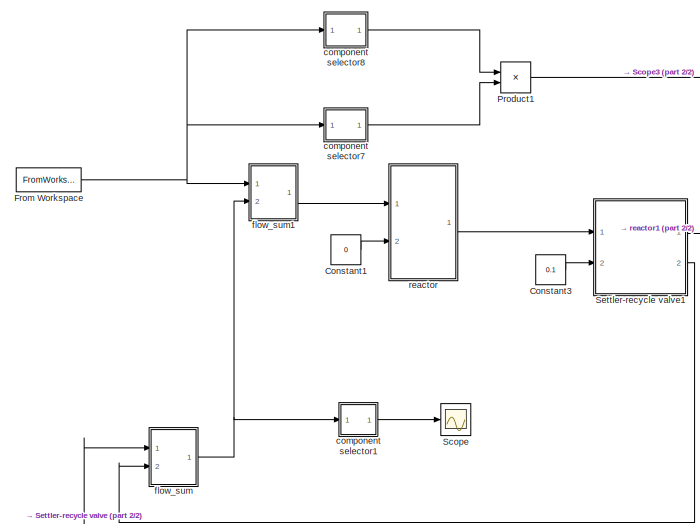
[diagram: root canvas - part 1/2, left side, full height]
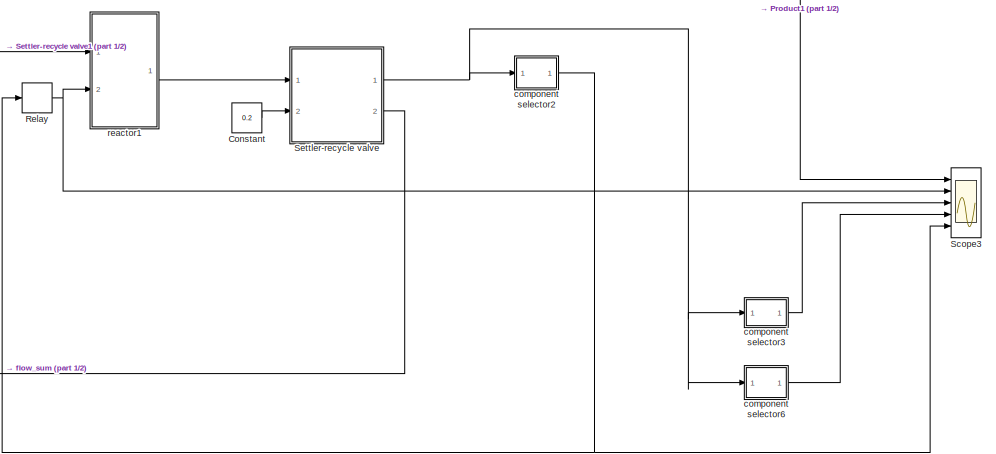
[diagram: root canvas - part 2/2, middle right region]
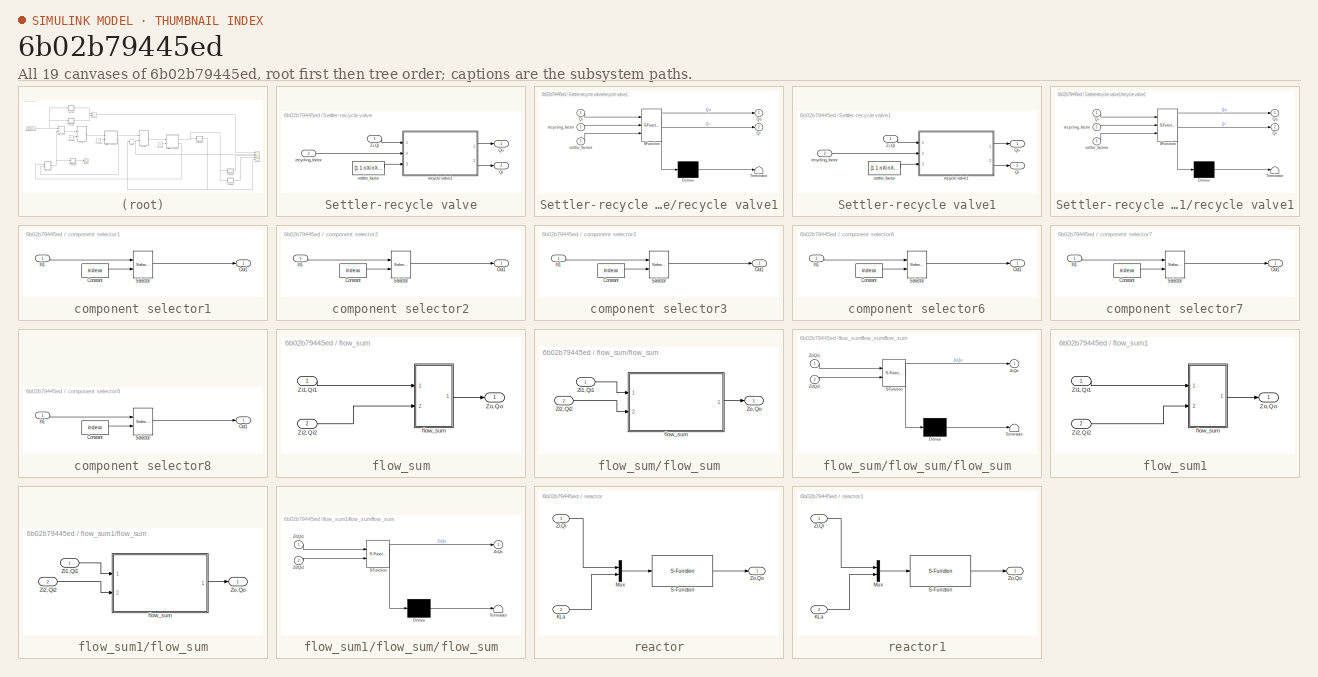
[diagram: thumbnail index - all 19 canvases of the model, root first then tree order]
MODEL slx_6b02b79445ed
KIND model
CONFIG AbsTol = Auto
CONFIG MaxStep = auto
CONFIG MinStep = auto
CONFIG RelTol = 1e-3
CONFIG SampleTimeConstraint = Unconstrained
CONFIG Solver = VariableStepAuto
CONFIG SolverMode = Auto
CONFIG SolverName = VariableStepAuto
CONFIG StartTime = 0.0
CONFIG StopTime = 28
BLOCK [Constant] Constant
  Value = 0.2
BLOCK [Constant] Constant1
  Value = 0
BLOCK [Constant] Constant3
  Value = 0.1
BLOCK [FromWorkspace] From Workspace
  OutputAfterFinalValue = Holding final value
  SampleTime = 2/1440
  VariableName = Qi
BLOCK [Product] Product1
  InputSameDT = off
  OutDataTypeStr = Inherit: Inherit via internal rule
  Ports = [2, 1]
  SaturateOnIntegerOverflow = off
BLOCK [Relay] Relay
  OffSwitchValue = 3
  OnOutputValue = 40
  OnSwitchValue = 5.4
BLOCK [Scope] Scope
  Ports = [1]
  ScopeSpecificationString = Simulink.scopes.TimeScopeBlockCfg('CurrentConfiguration', extmgr.ConfigurationSet(extmgr.Configuration('Core','General UI',true),extmgr.Configuration('Core','Source UI',true),extmgr.Configuration('Sources','WiredSimulink',true,'DataLoggingVariableName','ScopeData2'),extmgr.Configuration('Visuals','Time Domain',true,'SerializedDisplays',{struct('MinYLimReal','423.67792','MaxYLimReal','2038.62653','...<+1471ch>
BLOCK [Scope] Scope3
  NumInputPorts = 5
  Ports = [5]
  ScopeSpecificationString = Simulink.scopes.TimeScopeBlockCfg('CurrentConfiguration', extmgr.ConfigurationSet(extmgr.Configuration('Core','General UI',true),extmgr.Configuration('Core','Source UI',true),extmgr.Configuration('Sources','WiredSimulink',true,'DataLoggingSaveFormat','StructureWithTime','DataLoggingDecimation','1','DataLoggingDecimateData',true),extmgr.Configuration('Visuals','Time Domain',true,'TimeAxisLabels','A...<+4371ch>
BLOCK [SubSystem] Settler-recycle valve
  Ports = [2, 2]
  RequestExecContextInheritance = off
  Variant = off
BLOCK [Outport] Settler-recycle valve/Qo
  IconDisplay = Port number
BLOCK [Outport] Settler-recycle valve/Qr
  IconDisplay = Port number
  Port = 2
BLOCK [Inport] Settler-recycle valve/Zi,Qi
  IconDisplay = Port number
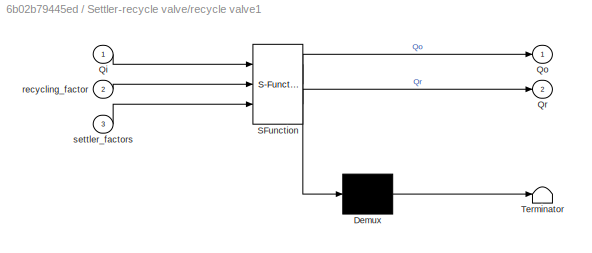
BLOCK [SubSystem] Settler-recycle valve/recycle valve1
  ErrorFcn = Stateflow.Translate.translate
  PermitHierarchicalResolution = ExplicitOnly
  Ports = [3, 2]
  RequestExecContextInheritance = off
  SFBlockType = MATLAB Function
  TreatAsAtomicUnit = on
  Variant = off
BLOCK [Demux] Settler-recycle valve/recycle valve1/ Demux 
  Outputs = 1
  Ports = [1, 1]
BLOCK [S-Function] Settler-recycle valve/recycle valve1/ SFunction 
  EnableBusSupport = on
  FunctionName = sf_sfun
  PortCounts = [3 3]
  Ports = [3, 3]
  SFunctionDeploymentMode = off
  Tag = Stateflow S-Function modelo_asm1_v2 1
BLOCK [Terminator] Settler-recycle valve/recycle valve1/ Terminator 
BLOCK [Inport] Settler-recycle valve/recycle valve1/Qi
  IconDisplay = Port number
BLOCK [Outport] Settler-recycle valve/recycle valve1/Qo
  IconDisplay = Port number
BLOCK [Outport] Settler-recycle valve/recycle valve1/Qr
  IconDisplay = Port number
  Port = 2
BLOCK [Inport] Settler-recycle valve/recycle valve1/recycling_factor
  IconDisplay = Port number
  Port = 2
BLOCK [Inport] Settler-recycle valve/recycle valve1/settler_factors
  IconDisplay = Port number
  Port = 3
BLOCK [Inport] Settler-recycle valve/recycling_factor
  IconDisplay = Port number
  Port = 2
BLOCK [Constant] Settler-recycle valve/settler_factor
  Value = [1 1 nXi nXs nXbh nXba nXp 1 1 1 1 1 1]
BLOCK [SubSystem] Settler-recycle valve1
  Ports = [2, 2]
  RequestExecContextInheritance = off
  Variant = off
BLOCK [Outport] Settler-recycle valve1/Qo
  IconDisplay = Port number
BLOCK [Outport] Settler-recycle valve1/Qr
  IconDisplay = Port number
  Port = 2
BLOCK [Inport] Settler-recycle valve1/Zi,Qi
  IconDisplay = Port number
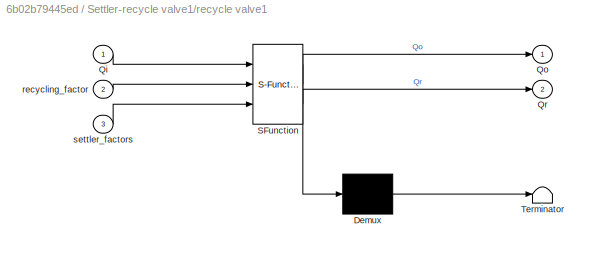
BLOCK [SubSystem] Settler-recycle valve1/recycle valve1
  ErrorFcn = Stateflow.Translate.translate
  PermitHierarchicalResolution = ExplicitOnly
  Ports = [3, 2]
  RequestExecContextInheritance = off
  SFBlockType = MATLAB Function
  TreatAsAtomicUnit = on
  Variant = off
BLOCK [Demux] Settler-recycle valve1/recycle valve1/ Demux 
  Outputs = 1
  Ports = [1, 1]
BLOCK [S-Function] Settler-recycle valve1/recycle valve1/ SFunction 
  EnableBusSupport = on
  FunctionName = sf_sfun
  PortCounts = [3 3]
  Ports = [3, 3]
  SFunctionDeploymentMode = off
  Tag = Stateflow S-Function modelo_asm1_v2 3
BLOCK [Terminator] Settler-recycle valve1/recycle valve1/ Terminator 
BLOCK [Inport] Settler-recycle valve1/recycle valve1/Qi
  IconDisplay = Port number
BLOCK [Outport] Settler-recycle valve1/recycle valve1/Qo
  IconDisplay = Port number
BLOCK [Outport] Settler-recycle valve1/recycle valve1/Qr
  IconDisplay = Port number
  Port = 2
BLOCK [Inport] Settler-recycle valve1/recycle valve1/recycling_factor
  IconDisplay = Port number
  Port = 2
BLOCK [Inport] Settler-recycle valve1/recycle valve1/settler_factors
  IconDisplay = Port number
  Port = 3
BLOCK [Inport] Settler-recycle valve1/recycling_factor
  IconDisplay = Port number
  Port = 2
BLOCK [Constant] Settler-recycle valve1/settler_factor
  Value = [1 1 nXi nXs nXbh nXba nXp 1 1 1 1 1 1]
BLOCK [SubSystem] component selector1
  Ports = [1, 1]
  RequestExecContextInheritance = off
  Variant = off
BLOCK [Constant] component selector1/Constant
  Value = indexx
BLOCK [Inport] component selector1/In1
  IconDisplay = Port number
BLOCK [Outport] component selector1/Out1
  IconDisplay = Port number
BLOCK [Selector] component selector1/Selector
  IndexOptions = Index vector (port)
  Indices = [1 3]
  InputPortWidth = 14
  OutputSizes = 1
  Ports = [2, 1]
BLOCK [SubSystem] component selector2
  Ports = [1, 1]
  RequestExecContextInheritance = off
  Variant = off
BLOCK [Constant] component selector2/Constant
  Value = indexx
BLOCK [Inport] component selector2/In1
  IconDisplay = Port number
BLOCK [Outport] component selector2/Out1
  IconDisplay = Port number
BLOCK [Selector] component selector2/Selector
  IndexOptions = Index vector (port)
  Indices = [1 3]
  InputPortWidth = 14
  OutputSizes = 1
  Ports = [2, 1]
BLOCK [SubSystem] component selector3
  Ports = [1, 1]
  RequestExecContextInheritance = off
  Variant = off
BLOCK [Constant] component selector3/Constant
  Value = indexx
BLOCK [Inport] component selector3/In1
  IconDisplay = Port number
BLOCK [Outport] component selector3/Out1
  IconDisplay = Port number
BLOCK [Selector] component selector3/Selector
  IndexOptions = Index vector (port)
  Indices = [1 3]
  InputPortWidth = 14
  OutputSizes = 1
  Ports = [2, 1]
BLOCK [SubSystem] component selector6
  Ports = [1, 1]
  RequestExecContextInheritance = off
  Variant = off
BLOCK [Constant] component selector6/Constant
  Value = indexx
BLOCK [Inport] component selector6/In1
  IconDisplay = Port number
BLOCK [Outport] component selector6/Out1
  IconDisplay = Port number
BLOCK [Selector] component selector6/Selector
  IndexOptions = Index vector (port)
  Indices = [1 3]
  InputPortWidth = 14
  OutputSizes = 1
  Ports = [2, 1]
BLOCK [SubSystem] component selector7
  Ports = [1, 1]
  RequestExecContextInheritance = off
  Variant = off
BLOCK [Constant] component selector7/Constant
  Value = indexx
BLOCK [Inport] component selector7/In1
  IconDisplay = Port number
BLOCK [Outport] component selector7/Out1
  IconDisplay = Port number
BLOCK [Selector] component selector7/Selector
  IndexOptions = Index vector (port)
  Indices = [1 3]
  InputPortWidth = 14
  OutputSizes = 1
  Ports = [2, 1]
BLOCK [SubSystem] component selector8
  Ports = [1, 1]
  RequestExecContextInheritance = off
  Variant = off
BLOCK [Constant] component selector8/Constant
  Value = indexx
BLOCK [Inport] component selector8/In1
  IconDisplay = Port number
BLOCK [Outport] component selector8/Out1
  IconDisplay = Port number
BLOCK [Selector] component selector8/Selector
  IndexOptions = Index vector (port)
  Indices = [1 3]
  InputPortWidth = 14
  OutputSizes = 1
  Ports = [2, 1]
BLOCK [SubSystem] flow_sum
  Ports = [2, 1]
  RequestExecContextInheritance = off
  Variant = off
BLOCK [Inport] flow_sum/Zi1,Qi1
  IconDisplay = Port number
BLOCK [Inport] flow_sum/Zi2,Qi2
  IconDisplay = Port number
  Port = 2
BLOCK [Outport] flow_sum/Zo,Qo
  IconDisplay = Port number
BLOCK [SubSystem] flow_sum/flow_sum
  Ports = [2, 1]
  RequestExecContextInheritance = off
  Variant = off
BLOCK [Inport] flow_sum/flow_sum/Zi1,Qi1
  IconDisplay = Port number
BLOCK [Inport] flow_sum/flow_sum/Zi2,Qi2
  IconDisplay = Port number
  Port = 2
BLOCK [Outport] flow_sum/flow_sum/Zo,Qo
  IconDisplay = Port number
BLOCK [SubSystem] flow_sum/flow_sum/flow_sum
  ErrorFcn = Stateflow.Translate.translate
  PermitHierarchicalResolution = ExplicitOnly
  Ports = [2, 1]
  RequestExecContextInheritance = off
  SFBlockType = MATLAB Function
  TreatAsAtomicUnit = on
  Variant = off
BLOCK [Demux] flow_sum/flow_sum/flow_sum/ Demux 
  Outputs = 1
  Ports = [1, 1]
BLOCK [S-Function] flow_sum/flow_sum/flow_sum/ SFunction 
  EnableBusSupport = on
  FunctionName = sf_sfun
  PortCounts = [2 2]
  Ports = [2, 2]
  SFunctionDeploymentMode = off
  Tag = Stateflow S-Function modelo_asm1_v2 2
BLOCK [Terminator] flow_sum/flow_sum/flow_sum/ Terminator 
BLOCK [Inport] flow_sum/flow_sum/flow_sum/Zi1Qi1
  IconDisplay = Port number
BLOCK [Inport] flow_sum/flow_sum/flow_sum/Zi2Qi2
  IconDisplay = Port number
  Port = 2
BLOCK [Outport] flow_sum/flow_sum/flow_sum/ZoQo
  IconDisplay = Port number
BLOCK [SubSystem] flow_sum1
  Ports = [2, 1]
  RequestExecContextInheritance = off
  Variant = off
BLOCK [Inport] flow_sum1/Zi1,Qi1
  IconDisplay = Port number
BLOCK [Inport] flow_sum1/Zi2,Qi2
  IconDisplay = Port number
  Port = 2
BLOCK [Outport] flow_sum1/Zo,Qo
  IconDisplay = Port number
BLOCK [SubSystem] flow_sum1/flow_sum
  Ports = [2, 1]
  RequestExecContextInheritance = off
  Variant = off
BLOCK [Inport] flow_sum1/flow_sum/Zi1,Qi1
  IconDisplay = Port number
BLOCK [Inport] flow_sum1/flow_sum/Zi2,Qi2
  IconDisplay = Port number
  Port = 2
BLOCK [Outport] flow_sum1/flow_sum/Zo,Qo
  IconDisplay = Port number
BLOCK [SubSystem] flow_sum1/flow_sum/flow_sum
  ErrorFcn = Stateflow.Translate.translate
  PermitHierarchicalResolution = ExplicitOnly
  Ports = [2, 1]
  RequestExecContextInheritance = off
  SFBlockType = MATLAB Function
  TreatAsAtomicUnit = on
  Variant = off
BLOCK [Demux] flow_sum1/flow_sum/flow_sum/ Demux 
  Outputs = 1
  Ports = [1, 1]
BLOCK [S-Function] flow_sum1/flow_sum/flow_sum/ SFunction 
  EnableBusSupport = on
  FunctionName = sf_sfun
  PortCounts = [2 2]
  Ports = [2, 2]
  SFunctionDeploymentMode = off
  Tag = Stateflow S-Function modelo_asm1_v2 4
BLOCK [Terminator] flow_sum1/flow_sum/flow_sum/ Terminator 
BLOCK [Inport] flow_sum1/flow_sum/flow_sum/Zi1Qi1
  IconDisplay = Port number
BLOCK [Inport] flow_sum1/flow_sum/flow_sum/Zi2Qi2
  IconDisplay = Port number
  Port = 2
BLOCK [Outport] flow_sum1/flow_sum/flow_sum/ZoQo
  IconDisplay = Port number
BLOCK [SubSystem] reactor
  Ports = [2, 1]
  RequestExecContextInheritance = off
  Variant = off
BLOCK [Inport] reactor/KLa
  IconDisplay = Port number
  Port = 2
BLOCK [Mux] reactor/Mux
  DisplayOption = bar
  Inputs = 2
  Ports = [2, 1]
BLOCK [S-Function] reactor/S-Function
  EnableBusSupport = off
  FunctionName = modelo_asm1_sf
  Parameters = initial_cond, parameters
  Ports = [1, 1]
  SFunctionDeploymentMode = off
BLOCK [Inport] reactor/Zi,Qi
  IconDisplay = Port number
BLOCK [Outport] reactor/Zo,Qo
  IconDisplay = Port number
BLOCK [SubSystem] reactor1
  Ports = [2, 1]
  RequestExecContextInheritance = off
  Variant = off
BLOCK [Inport] reactor1/KLa
  IconDisplay = Port number
  Port = 2
BLOCK [Mux] reactor1/Mux
  DisplayOption = bar
  Inputs = 2
  Ports = [2, 1]
BLOCK [S-Function] reactor1/S-Function
  EnableBusSupport = off
  FunctionName = modelo_asm1_sf
  Parameters = initial_cond, parameters
  Ports = [1, 1]
  SFunctionDeploymentMode = off
BLOCK [Inport] reactor1/Zi,Qi
  IconDisplay = Port number
BLOCK [Outport] reactor1/Zo,Qo
  IconDisplay = Port number
LINE Constant1:1 -> reactor:2
LINE Constant3:1 -> Settler-recycle valve1:2
LINE Constant:1 -> Settler-recycle valve:2
NET From Workspace:1 -> component selector7:1, component selector8:1, flow_sum1:1
LINE Product1:1 -> Scope3:1
NET Relay:1 -> Scope3:2, reactor1:2
LINE Settler-recycle valve/Zi,Qi:1 -> Settler-recycle valve/recycle valve1:1
LINE Settler-recycle valve/recycle valve1:1 -> Settler-recycle valve/Qo:1
LINE Settler-recycle valve/recycle valve1:2 -> Settler-recycle valve/Qr:1
LINE Settler-recycle valve/recycling_factor:1 -> Settler-recycle valve/recycle valve1:2
LINE Settler-recycle valve/settler_factor:1 -> Settler-recycle valve/recycle valve1:3
LINE Settler-recycle valve1/Zi,Qi:1 -> Settler-recycle valve1/recycle valve1:1
LINE Settler-recycle valve1/recycle valve1:1 -> Settler-recycle valve1/Qo:1
LINE Settler-recycle valve1/recycle valve1:2 -> Settler-recycle valve1/Qr:1
LINE Settler-recycle valve1/recycling_factor:1 -> Settler-recycle valve1/recycle valve1:2
LINE Settler-recycle valve1/settler_factor:1 -> Settler-recycle valve1/recycle valve1:3
LINE Settler-recycle valve1:1 -> reactor1:1
LINE Settler-recycle valve1:2 -> flow_sum:2
NET Settler-recycle valve:1 -> component selector2:1, component selector3:1, component selector6:1
LINE Settler-recycle valve:2 -> flow_sum:1
LINE component selector1/Constant:1 -> component selector1/Selector:2
LINE component selector1/In1:1 -> component selector1/Selector:1
LINE component selector1/Selector:1 -> component selector1/Out1:1
LINE component selector1:1 -> Scope:1
LINE component selector2/Constant:1 -> component selector2/Selector:2
LINE component selector2/In1:1 -> component selector2/Selector:1
LINE component selector2/Selector:1 -> component selector2/Out1:1
NET component selector2:1 -> Relay:1, Scope3:5
LINE component selector3/Constant:1 -> component selector3/Selector:2
LINE component selector3/In1:1 -> component selector3/Selector:1
LINE component selector3/Selector:1 -> component selector3/Out1:1
LINE component selector3:1 -> Scope3:3
LINE component selector6/Constant:1 -> component selector6/Selector:2
LINE component selector6/In1:1 -> component selector6/Selector:1
LINE component selector6/Selector:1 -> component selector6/Out1:1
LINE component selector6:1 -> Scope3:4
LINE component selector7/Constant:1 -> component selector7/Selector:2
LINE component selector7/In1:1 -> component selector7/Selector:1
LINE component selector7/Selector:1 -> component selector7/Out1:1
LINE component selector7:1 -> Product1:2
LINE component selector8/Constant:1 -> component selector8/Selector:2
LINE component selector8/In1:1 -> component selector8/Selector:1
LINE component selector8/Selector:1 -> component selector8/Out1:1
LINE component selector8:1 -> Product1:1
LINE flow_sum/Zi1,Qi1:1 -> flow_sum/flow_sum:1
LINE flow_sum/Zi2,Qi2:1 -> flow_sum/flow_sum:2
LINE flow_sum/flow_sum/Zi1,Qi1:1 -> flow_sum/flow_sum/flow_sum:1
LINE flow_sum/flow_sum/Zi2,Qi2:1 -> flow_sum/flow_sum/flow_sum:2
LINE flow_sum/flow_sum/flow_sum:1 -> flow_sum/flow_sum/Zo,Qo:1
LINE flow_sum/flow_sum:1 -> flow_sum/Zo,Qo:1
LINE flow_sum1/Zi1,Qi1:1 -> flow_sum1/flow_sum:1
LINE flow_sum1/Zi2,Qi2:1 -> flow_sum1/flow_sum:2
LINE flow_sum1/flow_sum/Zi1,Qi1:1 -> flow_sum1/flow_sum/flow_sum:1
LINE flow_sum1/flow_sum/Zi2,Qi2:1 -> flow_sum1/flow_sum/flow_sum:2
LINE flow_sum1/flow_sum/flow_sum:1 -> flow_sum1/flow_sum/Zo,Qo:1
LINE flow_sum1/flow_sum:1 -> flow_sum1/Zo,Qo:1
LINE flow_sum1:1 -> reactor:1
NET flow_sum:1 -> component selector1:1, flow_sum1:2
LINE reactor/KLa:1 -> reactor/Mux:2
LINE reactor/Mux:1 -> reactor/S-Function:1
LINE reactor/S-Function:1 -> reactor/Zo,Qo:1
LINE reactor/Zi,Qi:1 -> reactor/Mux:1
LINE reactor1/KLa:1 -> reactor1/Mux:2
LINE reactor1/Mux:1 -> reactor1/S-Function:1
LINE reactor1/S-Function:1 -> reactor1/Zo,Qo:1
LINE reactor1/Zi,Qi:1 -> reactor1/Mux:1
LINE reactor1:1 -> Settler-recycle valve:1
LINE reactor:1 -> Settler-recycle valve1:1
note: NET lines group one-source signal fan-out (src -> all destinations, sorted); 1:1 wires keep LINE
CHART Settler-recycle valve/recycle
valve1 states=1 transitions=1
  STATE_LABEL 'eML_blk_kernel()'
  STATE_LABEL 'SCRIPT:\nfunction [Qo,Qr]  = fcn(Qi,recycling_factor,settler_factors)\n%This block simulates the effect of the settler in the recycle flow.\n%Input paramenters:\n% -Qi: Input flow\n% -sludge_re_conc: concetration of the sludge produced by the settler.\n%       The sludge concnetration in the output flows (Qo and Qr) is "sludge_re_conc" times the \n%       the sludge concentration in the input flow (Qi).\n...<+326ch>'
CHART flow_sum/flow_sum/flow_sum states=1 transitions=1
  STATE_LABEL 'eML_blk_kernel()'
  STATE_LABEL 'SCRIPT:\nfunction ZoQo   = fcn(Zi1Qi1,Zi2Qi2)\n%This block simulates the the summation of two flows.\n%Input paramenters:\n% -Qi1 and Qi2: Input flows to be added \n% %Output paramenters:\n% -ZoQo: resultan flow \n%#eml\n\nZoQo=zeros(14,1);\nZoQo(end)=Zi1Qi1(end)+Zi2Qi2(end);\nZoQo(1:end-1)=(Zi1Qi1(1:end-1)*Zi1Qi1(end) + Zi2Qi2(1:end-1)*Zi2Qi2(end))/(Zi1Qi1(end) + Zi2Qi2(end)  +  1e-4);\n\n\n\n\n'
CHART Settler-recycle valve1/recycle
valve1 states=1 transitions=1
  STATE_LABEL 'eML_blk_kernel()'
  STATE_LABEL 'SCRIPT:\nfunction [Qo,Qr]  = fcn(Qi,recycling_factor,settler_factors)\n%This block simulates the effect of the settler in the recycle flow.\n%Input paramenters:\n% -Qi: Input flow\n% -sludge_re_conc: concetration of the sludge produced by the settler.\n%       The sludge concnetration in the output flows (Qo and Qr) is "sludge_re_conc" times the \n%       the sludge concentration in the input flow (Qi).\n...<+326ch>'
CHART flow_sum1/flow_sum/flow_sum states=1 transitions=1
  STATE_LABEL 'eML_blk_kernel()'
  STATE_LABEL 'SCRIPT:\nfunction ZoQo   = fcn(Zi1Qi1,Zi2Qi2)\n%This block simulates the the summation of two flows.\n%Input paramenters:\n% -Qi1 and Qi2: Input flows to be added \n% %Output paramenters:\n% -ZoQo: resultan flow \n%#eml\n\nZoQo=zeros(14,1);\nZoQo(end)=Zi1Qi1(end)+Zi2Qi2(end);\nZoQo(1:end-1)=(Zi1Qi1(1:end-1)*Zi1Qi1(end) + Zi2Qi2(1:end-1)*Zi2Qi2(end))/(Zi1Qi1(end) + Zi2Qi2(end)  +  1e-4);\n\n\n\n\n'
